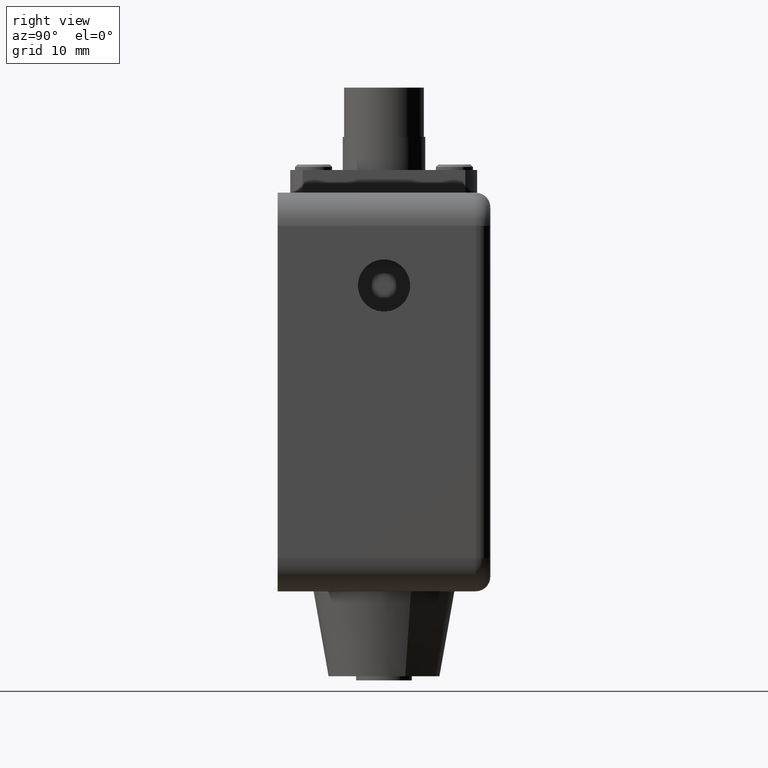
[diagram: clean part render]
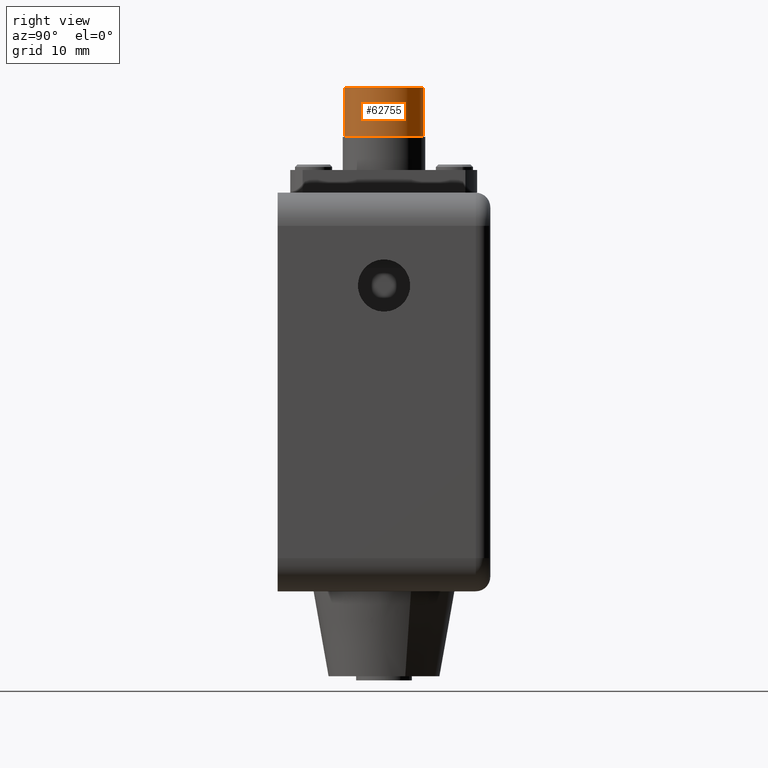
[diagram: same view with one face highlighted and labeled with its STEP entity id]
A machine part, right view. The second image highlights one B-rep face of the part: STEP entity #62755.
In plain terms, the highlighted cylindrical surface (partial cylindrical patch) has radius 3.81 mm, axis along (-0, -0, 1).
Its self-contained STEP definition (entity closure, byte-faithful):
#8065 = VERTEX_POINT ( 'NONE', #98015 ) ;
#8084 = VERTEX_POINT ( 'NONE', #98013 ) ;
#8126 = VERTEX_POINT ( 'NONE', #98018 ) ;
#16077 = LINE ( 'NONE', #18749, #16086 ) ;
#16086 = VECTOR ( 'NONE', #18743, 39.37007874015748100 ) ;
#16099 = LINE ( 'NONE', #18773, #16103 ) ;
#16103 = VECTOR ( 'NONE', #18771, 39.37007874015748100 ) ;
#16290 = CIRCLE ( 'NONE', #17604, 0.1499999999999999900 ) ;
#16292 = CIRCLE ( 'NONE', #17605, 0.1499999999999999900 ) ;
#17604 = AXIS2_PLACEMENT_3D ( 'NONE', #19230, #19232, #19234 ) ;
#17605 = AXIS2_PLACEMENT_3D ( 'NONE', #19240, #19242, #19244 ) ;
#18743 = DIRECTION ( 'NONE',  ( -0.0000000000000000000, 1.000000000000000000, -0.0000000000000000000 ) ) ;
#18749 = CARTESIAN_POINT ( 'NONE',  ( 1.836970198721029400E-017, 0.2099999999999999400, -0.1499999999999999900 ) ) ;
#18771 = DIRECTION ( 'NONE',  ( -0.0000000000000000000, 1.000000000000000000, -0.0000000000000000000 ) ) ;
#18773 = CARTESIAN_POINT ( 'NONE',  ( 0.0000000000000000000, 0.2099999999999999400, 0.1499999999999999900 ) ) ;
#19230 = CARTESIAN_POINT ( 'NONE',  ( 0.0000000000000000000, 0.2099999999999999400, 0.0000000000000000000 ) ) ;
#19232 = DIRECTION ( 'NONE',  ( 0.0000000000000000000, 1.000000000000000000, 0.0000000000000000000 ) ) ;
#19234 = DIRECTION ( 'NONE',  ( 0.0000000000000000000, 0.0000000000000000000, 1.000000000000000000 ) ) ;
#19240 = CARTESIAN_POINT ( 'NONE',  ( 0.0000000000000000000, 0.3949999999999999600, 0.0000000000000000000 ) ) ;
#19242 = DIRECTION ( 'NONE',  ( 0.0000000000000000000, 1.000000000000000000, 0.0000000000000000000 ) ) ;
#19244 = DIRECTION ( 'NONE',  ( 0.0000000000000000000, 0.0000000000000000000, 1.000000000000000000 ) ) ;
#22233 = AXIS2_PLACEMENT_3D ( 'NONE', #58375, #58371, #58385 ) ;
#27840 = CARTESIAN_POINT ( 'NONE',  ( 0.0000000000000000000, 0.2099999999999999400, 0.1499999999999999900 ) ) ;
#53456 = FACE_OUTER_BOUND ( 'NONE', #94742, .T. ) ;
#53466 = CYLINDRICAL_SURFACE ( 'NONE', #22233, 0.1499999999999999900 ) ;
#58371 = DIRECTION ( 'NONE',  ( -0.0000000000000000000, 1.000000000000000000, -0.0000000000000000000 ) ) ;
#58375 = CARTESIAN_POINT ( 'NONE',  ( 0.0000000000000000000, 0.2099999999999999400, 0.0000000000000000000 ) ) ;
#58385 = DIRECTION ( 'NONE',  ( 0.0000000000000000000, 0.0000000000000000000, 1.000000000000000000 ) ) ;
#62755 = ADVANCED_FACE ( 'NONE', ( #53456 ), #53466, .T. ) ;
#65489 = EDGE_CURVE ( 'NONE', #8084, #8065, #16077, .T. ) ;
#65511 = EDGE_CURVE ( 'NONE', #79974, #8126, #16099, .T. ) ;
#65745 = EDGE_CURVE ( 'NONE', #8084, #79974, #16290, .T. ) ;
#65749 = EDGE_CURVE ( 'NONE', #8065, #8126, #16292, .T. ) ;
#79974 = VERTEX_POINT ( 'NONE', #27840 ) ;
#91250 = ORIENTED_EDGE ( 'NONE', *, *, #65489, .F. ) ;
#91252 = ORIENTED_EDGE ( 'NONE', *, *, #65745, .T. ) ;
#91254 = ORIENTED_EDGE ( 'NONE', *, *, #65511, .T. ) ;
#91256 = ORIENTED_EDGE ( 'NONE', *, *, #65749, .F. ) ;
#94742 = EDGE_LOOP ( 'NONE', ( #91250, #91252, #91254, #91256 ) ) ;
#98013 = CARTESIAN_POINT ( 'NONE',  ( 1.836970198721029400E-017, 0.2099999999999999400, -0.1499999999999999900 ) ) ;
#98015 = CARTESIAN_POINT ( 'NONE',  ( 1.836970198721029400E-017, 0.3949999999999999600, -0.1499999999999999900 ) ) ;
#98018 = CARTESIAN_POINT ( 'NONE',  ( 0.0000000000000000000, 0.3949999999999999600, 0.1499999999999999900 ) ) ;